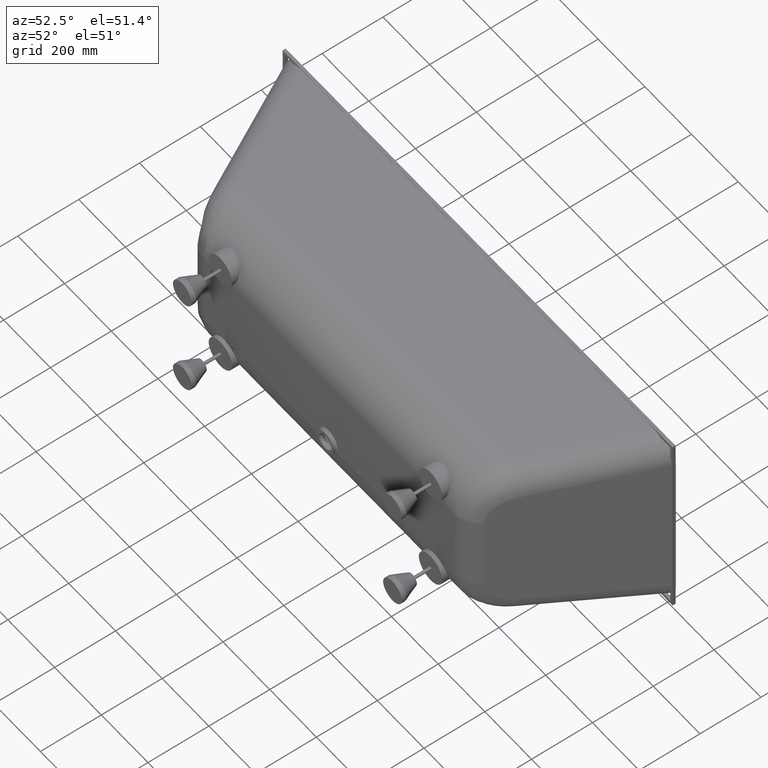
[diagram: clean part render]
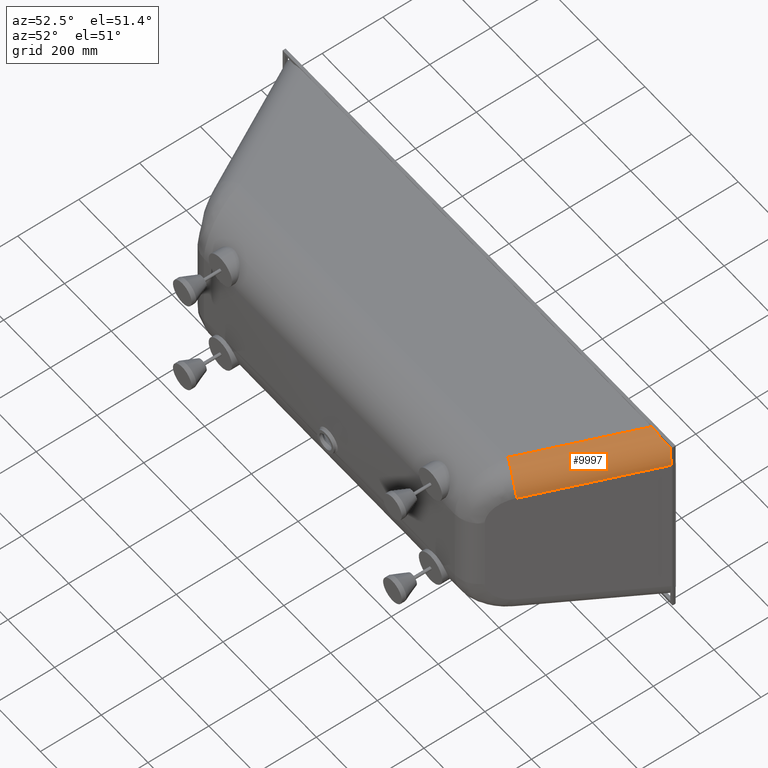
[diagram: same view with one face highlighted and labeled with its STEP entity id]
A machine part, auxiliary view. The second image highlights one B-rep face of the part: STEP entity #9997.
In plain terms, the highlighted cylindrical surface (edge-blend (fillet) strip) has radius 80 mm, axis along (-0.4471, -0.8888, -0.1004).
Its self-contained STEP definition (entity closure, byte-faithful):
#857 = DIRECTION ( 'NONE',  ( 0.4471435776645231200, 0.8888119278474394500, 0.1003791704961174800 ) ) ;
#973 = CARTESIAN_POINT ( 'NONE',  ( 736.7440118179032400, -28.65054714103081700, 326.8278829508298600 ) ) ;
#1503 = LINE ( 'NONE', #973, #5067 ) ;
#1522 = ORIENTED_EDGE ( 'NONE', *, *, #2558, .F. ) ;
#1559 = CARTESIAN_POINT ( 'NONE',  ( 574.8195190304029400, -341.5389492430559200, 210.9828422237281400 ) ) ;
#1567 = DIRECTION ( 'NONE',  ( 0.4471435776645231700, 0.8888119278474394500, 0.1003791704961175000 ) ) ;
#1569 = DIRECTION ( 'NONE',  ( 0.8933238780124908000, -0.4494134499241480000, -6.245004513516507900E-015 ) ) ;
#1692 = LINE ( 'NONE', #8116, #3779 ) ;
#2282 = EDGE_CURVE ( 'NONE', #9084, #2785, #1503, .T. ) ;
#2558 = EDGE_CURVE ( 'NONE', #2785, #3322, #10376, .T. ) ;
#2785 = VERTEX_POINT ( 'NONE', #3558 ) ;
#2911 = AXIS2_PLACEMENT_3D ( 'NONE', #1559, #1567, #1569 ) ;
#3083 = CARTESIAN_POINT ( 'NONE',  ( 836.1941483331311200, 0.0000000000000000000, 298.8530747239397000 ) ) ;
#3094 = CARTESIAN_POINT ( 'NONE',  ( 836.1941483331313500, -6.938893903907228400E-015, 253.6154118090144300 ) ) ;
#3106 = CARTESIAN_POINT ( 'NONE',  ( 751.1575314268407100, 0.0000000000000000000, 330.0635710263056200 ) ) ;
#3267 = CARTESIAN_POINT ( 'NONE',  ( 801.4773540415144500, 0.0000000000000000000, 330.0635710263056200 ) ) ;
#3322 = VERTEX_POINT ( 'NONE', #9965 ) ;
#3558 = CARTESIAN_POINT ( 'NONE',  ( 751.1575314268407100, 0.0000000000000000000, 330.0635710263056200 ) ) ;
#3779 = VECTOR ( 'NONE', #7906, 1000.000000000000100 ) ;
#5067 = VECTOR ( 'NONE', #857, 1000.000000000000100 ) ;
#5226 = CARTESIAN_POINT ( 'NONE',  ( 574.8195190304029400, -350.5167838247557500, 290.4774866107788400 ) ) ;
#5539 = EDGE_CURVE ( 'NONE', #9084, #10533, #5809, .T. ) ;
#5809 = CIRCLE ( 'NONE', #2911, 79.99999999999997200 ) ;
#6348 = CARTESIAN_POINT ( 'NONE',  ( 646.2854292714022200, -377.4920252369877900, 210.9828422237282300 ) ) ;
#7452 = EDGE_CURVE ( 'NONE', #3322, #10533, #1692, .T. ) ;
#7654 = CYLINDRICAL_SURFACE ( 'NONE', #7959, 80.00000000000000000 ) ;
#7906 = DIRECTION ( 'NONE',  ( -0.4471435776645231200, -0.8888119278474394500, -0.1003791704961174800 ) ) ;
#7959 = AXIS2_PLACEMENT_3D ( 'NONE', #8703, #9166, #8667 ) ;
#8116 = CARTESIAN_POINT ( 'NONE',  ( 808.2099220589025200, -55.62578855326290700, 247.3332385637793600 ) ) ;
#8195 = ORIENTED_EDGE ( 'NONE', *, *, #2282, .F. ) ;
#8409 = EDGE_LOOP ( 'NONE', ( #1522, #8195, #9393, #9224 ) ) ;
#8667 = DIRECTION ( 'NONE',  ( 0.8933238780124904700, -0.4494134499241485600, 0.0000000000000000000 ) ) ;
#8703 = CARTESIAN_POINT ( 'NONE',  ( 736.7440118179032400, -19.67271255933102100, 247.3332385637792500 ) ) ;
#8852 = FACE_OUTER_BOUND ( 'NONE', #8409, .T. ) ;
#9084 = VERTEX_POINT ( 'NONE', #5226 ) ;
#9166 = DIRECTION ( 'NONE',  ( -0.4471435776645231700, -0.8888119278474394500, -0.1003791704961175000 ) ) ;
#9224 = ORIENTED_EDGE ( 'NONE', *, *, #7452, .F. ) ;
#9393 = ORIENTED_EDGE ( 'NONE', *, *, #5539, .T. ) ;
#9965 = CARTESIAN_POINT ( 'NONE',  ( 836.1941483331313500, -6.938893903907228400E-015, 253.6154118090144300 ) ) ;
#9997 = ADVANCED_FACE ( 'NONE', ( #8852 ), #7654, .T. ) ;
#10376 =( BOUNDED_CURVE ( )  B_SPLINE_CURVE ( 3, ( #3106, #3267, #3083, #3094 ),
 .UNSPECIFIED., .F., .T. ) 
 B_SPLINE_CURVE_WITH_KNOTS ( ( 4, 4 ),
 ( 1.818195062202074800, 3.338535488147926300 ),
 .UNSPECIFIED. ) 
 CURVE ( )  GEOMETRIC_REPRESENTATION_ITEM ( )  RATIONAL_B_SPLINE_CURVE ( ( 1.000000000000000000, 0.8164791579160313200, 0.8164791579160313200, 1.000000000000000000 ) ) 
 REPRESENTATION_ITEM ( '' )  );
#10533 = VERTEX_POINT ( 'NONE', #6348 ) ;